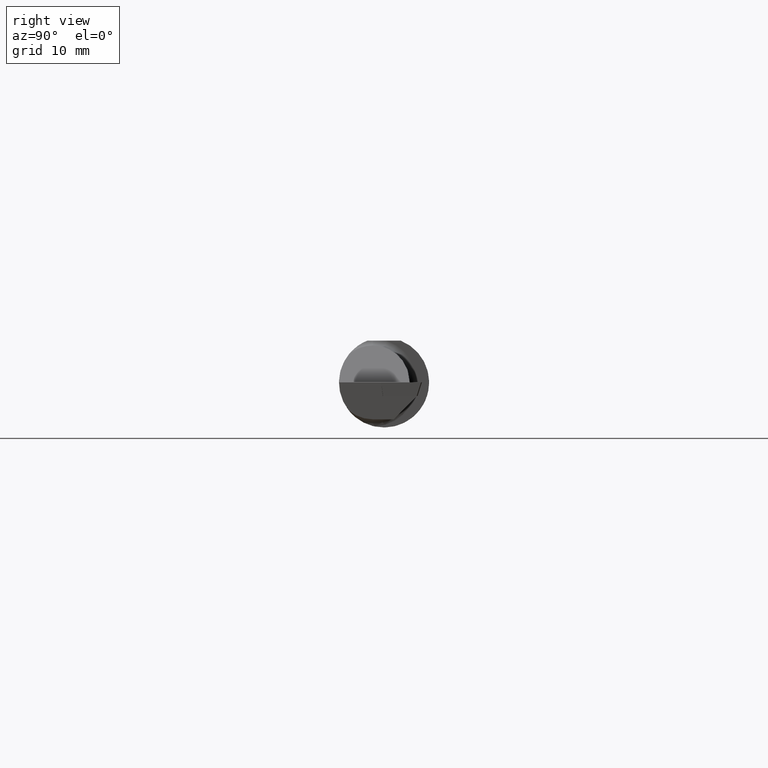
[diagram: clean part render]
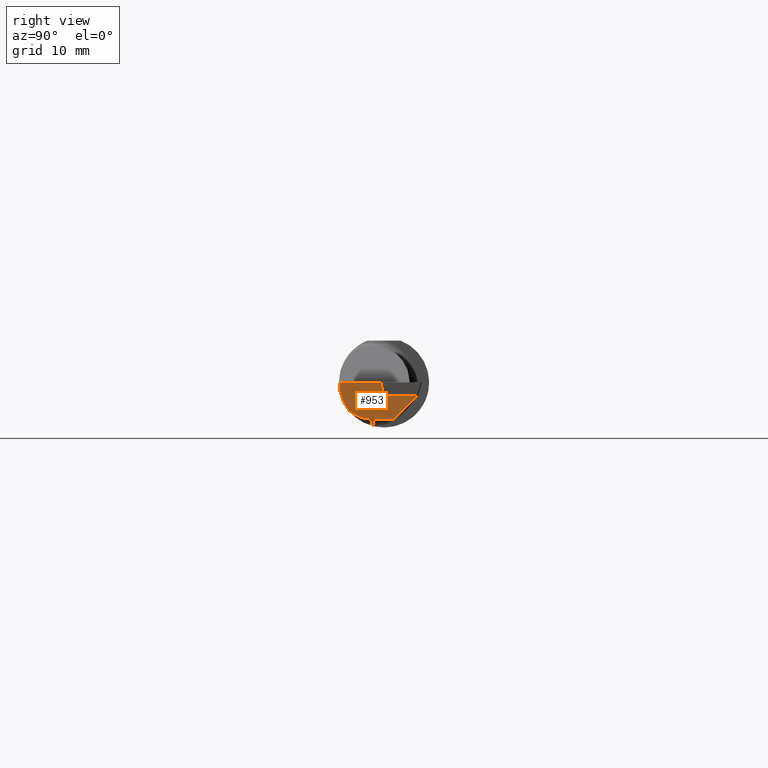
[diagram: same view with one face highlighted and labeled with its STEP entity id]
A machine part, right view. The second image highlights one B-rep face of the part: STEP entity #953.
In plain terms, the highlighted planar face has unit normal (-0.9932, 0.0262, 0.1132).
Its self-contained STEP definition (entity closure, byte-faithful):
#29 = AXIS2_PLACEMENT_3D ( 'NONE', #434, #1203, #710 ) ;
#69 = CARTESIAN_POINT ( 'NONE',  ( 2.500926890079958387, 0.1670689702544715383, -3.414809992080329023E-17 ) ) ;
#105 = CARTESIAN_POINT ( 'NONE',  ( 2.480543170215857351, -0.09830280903914324908, -0.1175203894739908633 ) ) ;
#127 = VERTEX_POINT ( 'NONE', #945 ) ;
#147 = EDGE_CURVE ( 'NONE', #127, #185, #1148, .T. ) ;
#154 = CARTESIAN_POINT ( 'NONE',  ( 2.484767998119733701, -0.1441601832648663484, -0.06983192264052476284 ) ) ;
#185 = VERTEX_POINT ( 'NONE', #768 ) ;
#188 = ORIENTED_EDGE ( 'NONE', *, *, #147, .T. ) ;
#244 =( BOUNDED_CURVE ( )  B_SPLINE_CURVE ( 3, ( #639, #154, #835, #1157 ),
 .UNSPECIFIED., .F., .T. ) 
 B_SPLINE_CURVE_WITH_KNOTS ( ( 4, 4 ),
 ( 0.6661093037523301286, 1.343476681901691450 ),
 .UNSPECIFIED. ) 
 CURVE ( )  GEOMETRIC_REPRESENTATION_ITEM ( )  RATIONAL_B_SPLINE_CURVE ( ( 1.000000000000000000, 0.9621285475740493087, 0.9621285475740493087, 1.000000000000000000 ) ) 
 REPRESENTATION_ITEM ( '' )  );
#250 = VECTOR ( 'NONE', #509, 39.37007874015747433 ) ;
#256 = DIRECTION ( 'NONE',  ( 0.02634618898890082536, 0.9996528789163572348, 0.000000000000000000 ) ) ;
#279 = CARTESIAN_POINT ( 'NONE',  ( 2.480909479427934272, -0.03909999999999996811, -0.1279999999999999749 ) ) ;
#307 = CARTESIAN_POINT ( 'NONE',  ( 2.485391940180325943, 0.1309779113687416230, -0.1279999999999999749 ) ) ;
#315 = VECTOR ( 'NONE', #256, 39.37007874015748143 ) ;
#336 = PLANE ( 'NONE',  #29 ) ;
#344 = ORIENTED_EDGE ( 'NONE', *, *, #937, .T. ) ;
#356 = DIRECTION ( 'NONE',  ( 0.1096666863977546619, -0.1096666863977555778, 0.9879000130524713263 ) ) ;
#434 = CARTESIAN_POINT ( 'NONE',  ( 2.450405151190015562, 0.1319000000000000172, -0.4352884014862854478 ) ) ;
#509 = DIRECTION ( 'NONE',  ( 0.02634618898890083230, 0.9996528789163572348, -0.000000000000000000 ) ) ;
#522 = ORIENTED_EDGE ( 'NONE', *, *, #556, .F. ) ;
#534 = LINE ( 'NONE', #832, #1247 ) ;
#547 = VERTEX_POINT ( 'NONE', #1112 ) ;
#556 = EDGE_CURVE ( 'NONE', #127, #1097, #534, .T. ) ;
#558 = CARTESIAN_POINT ( 'NONE',  ( 2.467664833978488126, -0.07267177432435968643, -0.2364810112614630644 ) ) ;
#574 = EDGE_LOOP ( 'NONE', ( #522, #188, #799, #773, #971, #344, #881 ) ) ;
#594 = CARTESIAN_POINT ( 'NONE',  ( 2.482836912340761870, 0.03403254531948889799, -0.1279999999999999749 ) ) ;
#639 = CARTESIAN_POINT ( 'NONE',  ( 2.482171087834817325, -0.1216370843989768719, -0.09783470600413822493 ) ) ;
#646 = EDGE_CURVE ( 'NONE', #547, #185, #752, .T. ) ;
#672 = CARTESIAN_POINT ( 'NONE',  ( 2.446866794416019619, 0.04003320558397976958, -0.4450937329397804954 ) ) ;
#701 = VERTEX_POINT ( 'NONE', #1129 ) ;
#703 = CARTESIAN_POINT ( 'NONE',  ( 2.482171087834817325, -0.1216370843989768719, -0.09783470600413822493 ) ) ;
#710 = DIRECTION ( 'NONE',  ( 0.1132032137678928713, 0.000000000000000000, 0.9935718556765890108 ) ) ;
#719 = EDGE_CURVE ( 'NONE', #839, #1097, #1224, .T. ) ;
#737 = CARTESIAN_POINT ( 'NONE',  ( 2.482171087834817325, -0.1216370843989768719, -0.09783470600413822493 ) ) ;
#752 = LINE ( 'NONE', #69, #315 ) ;
#768 = CARTESIAN_POINT ( 'NONE',  ( 2.496276607335335740, -0.009376607335336913096, 0.000000000000000000 ) ) ;
#773 = ORIENTED_EDGE ( 'NONE', *, *, #1196, .F. ) ;
#792 = LINE ( 'NONE', #307, #250 ) ;
#799 = ORIENTED_EDGE ( 'NONE', *, *, #646, .F. ) ;
#817 = FACE_OUTER_BOUND ( 'NONE', #574, .T. ) ;
#831 = CARTESIAN_POINT ( 'NONE',  ( 2.494165515688514301, 0.1137059350735730306, -0.04700000000000000705 ) ) ;
#832 = CARTESIAN_POINT ( 'NONE',  ( 2.494614318553567855, 0.1307348524743262297, -0.04700000000000000705 ) ) ;
#835 = CARTESIAN_POINT ( 'NONE',  ( 2.488315193899383715, -0.1560999999999999055, -0.03593669237189370952 ) ) ;
#839 = VERTEX_POINT ( 'NONE', #594 ) ;
#842 = EDGE_CURVE ( 'NONE', #1161, #701, #1211, .T. ) ;
#881 = ORIENTED_EDGE ( 'NONE', *, *, #719, .T. ) ;
#884 = CARTESIAN_POINT ( 'NONE',  ( 2.480104879617984537, -0.06962891318477891500, -0.1280000000000000027 ) ) ;
#937 = EDGE_CURVE ( 'NONE', #701, #839, #792, .T. ) ;
#938 = DIRECTION ( 'NONE',  ( 0.09921662170349271337, 0.6977845660589910848, 0.7094031021553340866 ) ) ;
#943 = VECTOR ( 'NONE', #938, 39.37007874015748854 ) ;
#945 = CARTESIAN_POINT ( 'NONE',  ( 2.491059141809884636, -0.004159141809885569946, -0.04700000000000000705 ) ) ;
#953 = ADVANCED_FACE ( 'NONE', ( #817 ), #336, .F. ) ;
#971 = ORIENTED_EDGE ( 'NONE', *, *, #842, .T. ) ;
#1097 = VERTEX_POINT ( 'NONE', #831 ) ;
#1112 = CARTESIAN_POINT ( 'NONE',  ( 2.492409662805121773, -0.1560999999999999333, -6.829619984160658046E-17 ) ) ;
#1118 = VECTOR ( 'NONE', #356, 39.37007874015748143 ) ;
#1129 = CARTESIAN_POINT ( 'NONE',  ( 2.480909479427934272, -0.03909999999999996811, -0.1279999999999999749 ) ) ;
#1148 = LINE ( 'NONE', #672, #1118 ) ;
#1157 = CARTESIAN_POINT ( 'NONE',  ( 2.492409662805121773, -0.1560999999999999333, -6.829619984160658046E-17 ) ) ;
#1161 = VERTEX_POINT ( 'NONE', #737 ) ;
#1196 = EDGE_CURVE ( 'NONE', #1161, #547, #244, .T. ) ;
#1203 = DIRECTION ( 'NONE',  ( -0.9932313834166597299, 0.02617694830786582855, 0.1131644218538480073 ) ) ;
#1211 =( BOUNDED_CURVE ( )  B_SPLINE_CURVE ( 3, ( #703, #105, #884, #279 ),
 .UNSPECIFIED., .F., .F. ) 
 B_SPLINE_CURVE_WITH_KNOTS ( ( 4, 4 ),
 ( 5.809715919723475785, 6.510504952072789564 ),
 .UNSPECIFIED. ) 
 CURVE ( )  GEOMETRIC_REPRESENTATION_ITEM ( )  RATIONAL_B_SPLINE_CURVE ( ( 1.000000000000000000, 0.9594915740107961000, 0.9594915740107961000, 1.000000000000000000 ) ) 
 REPRESENTATION_ITEM ( '' )  );
#1220 = DIRECTION ( 'NONE',  ( 0.02634618898890083230, 0.9996528789163572348, 0.000000000000000000 ) ) ;
#1224 = LINE ( 'NONE', #558, #943 ) ;
#1247 = VECTOR ( 'NONE', #1220, 39.37007874015747433 ) ;